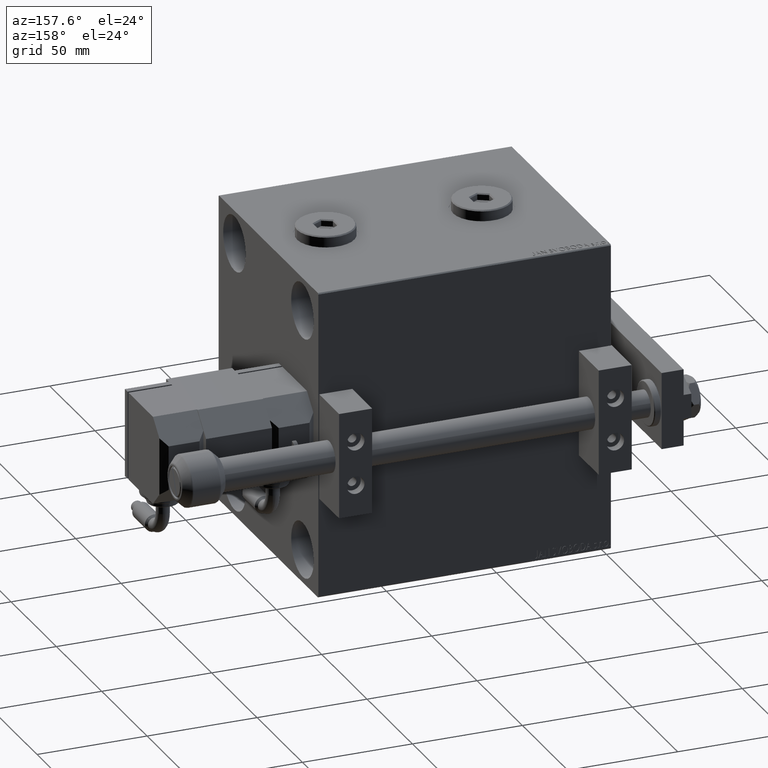
[diagram: clean part render]
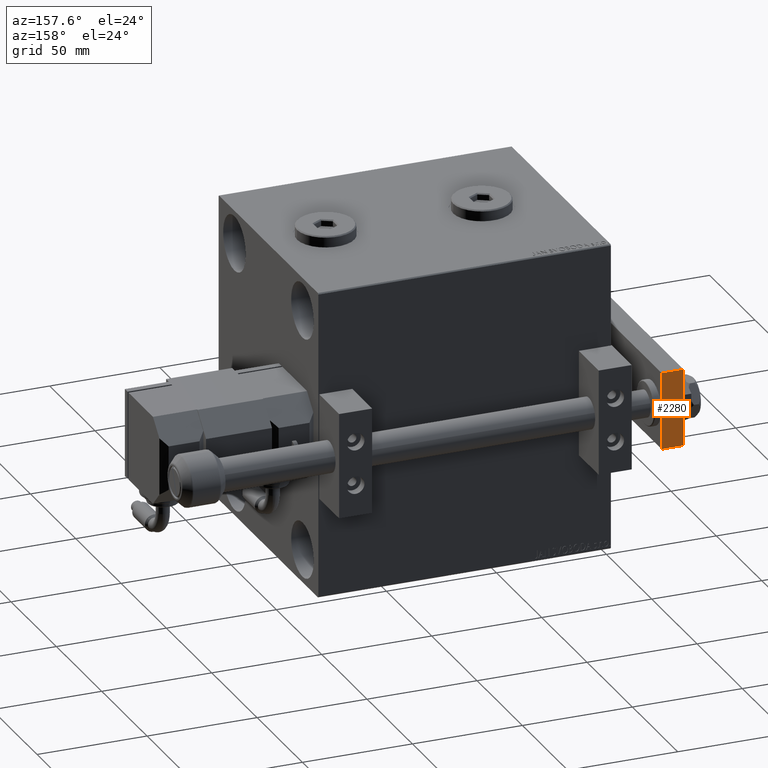
[diagram: same view with one face highlighted and labeled with its STEP entity id]
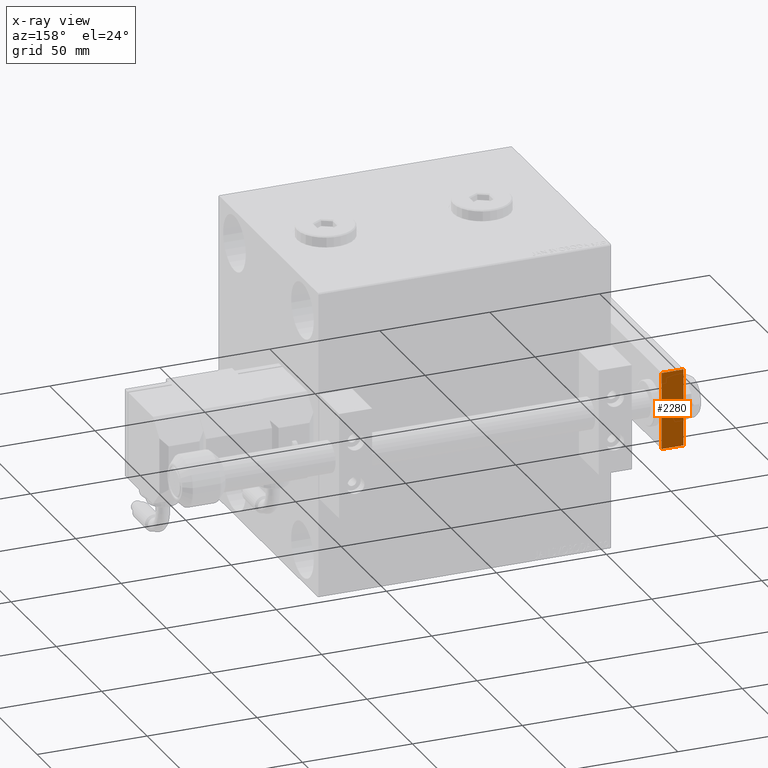
[diagram: x-ray of the same camera — body ghosted, the highlighted face saturated]
A machine part, auxiliary view. The second image highlights one B-rep face of the part: STEP entity #2280.
The next image is the same camera in x-ray: the body ghosted, the highlighted face saturated — about 0% of this face is hidden behind the body in this view.
In plain terms, the highlighted planar face has unit normal (0, -1, 0).
Its self-contained STEP definition (entity closure, byte-faithful):
#165 = EDGE_CURVE ( 'NONE', #44091, #47815, #15616, .T. ) ;
#2280 = ADVANCED_FACE ( 'NONE', ( #19579 ), #24618, .F. ) ;
#3101 = VECTOR ( 'NONE', #32427, 1000.000000000000000 ) ;
#3406 = CARTESIAN_POINT ( 'NONE',  ( 17.50000000000000000, 95.00000000000000000, 10.00000000000000000 ) ) ;
#7658 = DIRECTION ( 'NONE',  ( 0.000000000000000000, -1.000000000000000000, 0.000000000000000000 ) ) ;
#8522 = LINE ( 'NONE', #16712, #3101 ) ;
#9057 = ORIENTED_EDGE ( 'NONE', *, *, #50615, .F. ) ;
#9786 = ORIENTED_EDGE ( 'NONE', *, *, #48063, .T. ) ;
#10282 = VECTOR ( 'NONE', #23590, 1000.000000000000000 ) ;
#12146 = VERTEX_POINT ( 'NONE', #25528 ) ;
#14185 = VECTOR ( 'NONE', #24933, 1000.000000000000000 ) ;
#15616 = LINE ( 'NONE', #20135, #10282 ) ;
#16712 = CARTESIAN_POINT ( 'NONE',  ( 17.50000000000000000, 95.00000000000000000, 0.000000000000000000 ) ) ;
#19546 = CARTESIAN_POINT ( 'NONE',  ( 17.50000000000000000, 95.00000000000000000, 10.00000000000000000 ) ) ;
#19579 = FACE_OUTER_BOUND ( 'NONE', #23839, .T. ) ;
#20135 = CARTESIAN_POINT ( 'NONE',  ( 17.50000000000000000, 95.00000000000000000, 10.00000000000000000 ) ) ;
#23590 = DIRECTION ( 'NONE',  ( -0.000000000000000000, -0.000000000000000000, -1.000000000000000000 ) ) ;
#23839 = EDGE_LOOP ( 'NONE', ( #9786, #9057, #45176, #35671 ) ) ;
#24618 = PLANE ( 'NONE',  #38300 ) ;
#24933 = DIRECTION ( 'NONE',  ( -0.000000000000000000, -0.000000000000000000, -1.000000000000000000 ) ) ;
#25528 = CARTESIAN_POINT ( 'NONE',  ( -17.50000000000000355, 95.00000000000000000, 10.00000000000000000 ) ) ;
#29148 = VECTOR ( 'NONE', #35772, 1000.000000000000000 ) ;
#32427 = DIRECTION ( 'NONE',  ( -1.000000000000000000, 0.000000000000000000, 0.000000000000000000 ) ) ;
#33025 = VERTEX_POINT ( 'NONE', #41980 ) ;
#35671 = ORIENTED_EDGE ( 'NONE', *, *, #165, .T. ) ;
#35772 = DIRECTION ( 'NONE',  ( -1.000000000000000000, 0.000000000000000000, 0.000000000000000000 ) ) ;
#35804 = DIRECTION ( 'NONE',  ( 0.000000000000000000, -0.000000000000000000, -1.000000000000000000 ) ) ;
#37162 = LINE ( 'NONE', #49917, #14185 ) ;
#37509 = CARTESIAN_POINT ( 'NONE',  ( 17.50000000000000000, 95.00000000000000000, 10.00000000000000000 ) ) ;
#38300 = AXIS2_PLACEMENT_3D ( 'NONE', #3406, #7658, #35804 ) ;
#38742 = EDGE_CURVE ( 'NONE', #44091, #12146, #48247, .T. ) ;
#41980 = CARTESIAN_POINT ( 'NONE',  ( -17.50000000000000355, 95.00000000000000000, 0.000000000000000000 ) ) ;
#44091 = VERTEX_POINT ( 'NONE', #37509 ) ;
#45176 = ORIENTED_EDGE ( 'NONE', *, *, #38742, .F. ) ;
#47815 = VERTEX_POINT ( 'NONE', #48172 ) ;
#48063 = EDGE_CURVE ( 'NONE', #47815, #33025, #8522, .T. ) ;
#48172 = CARTESIAN_POINT ( 'NONE',  ( 17.50000000000000000, 95.00000000000000000, 0.000000000000000000 ) ) ;
#48247 = LINE ( 'NONE', #19546, #29148 ) ;
#49917 = CARTESIAN_POINT ( 'NONE',  ( -17.50000000000000355, 95.00000000000000000, 10.00000000000000000 ) ) ;
#50615 = EDGE_CURVE ( 'NONE', #12146, #33025, #37162, .T. ) ;